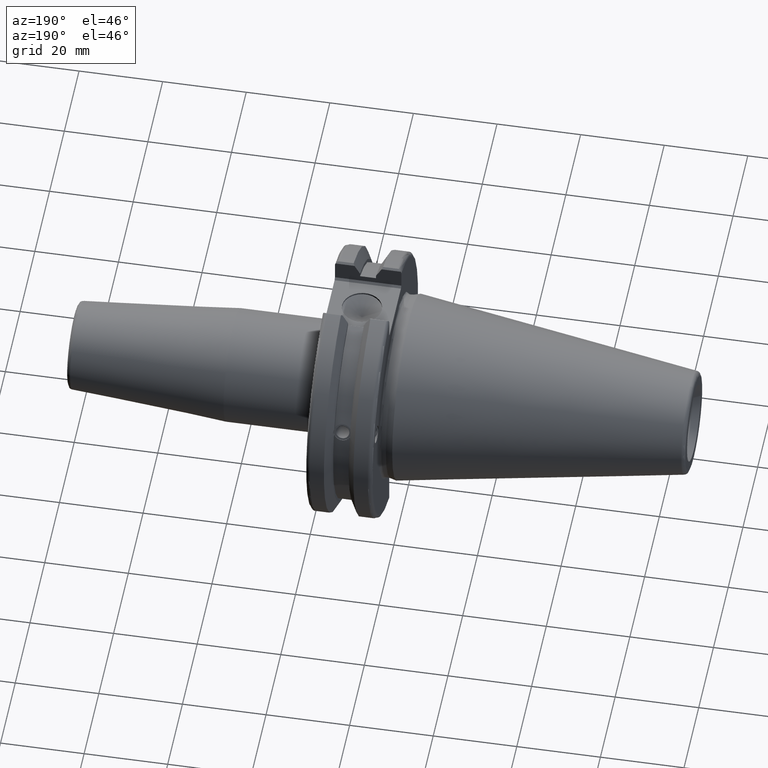
[diagram: clean part render]
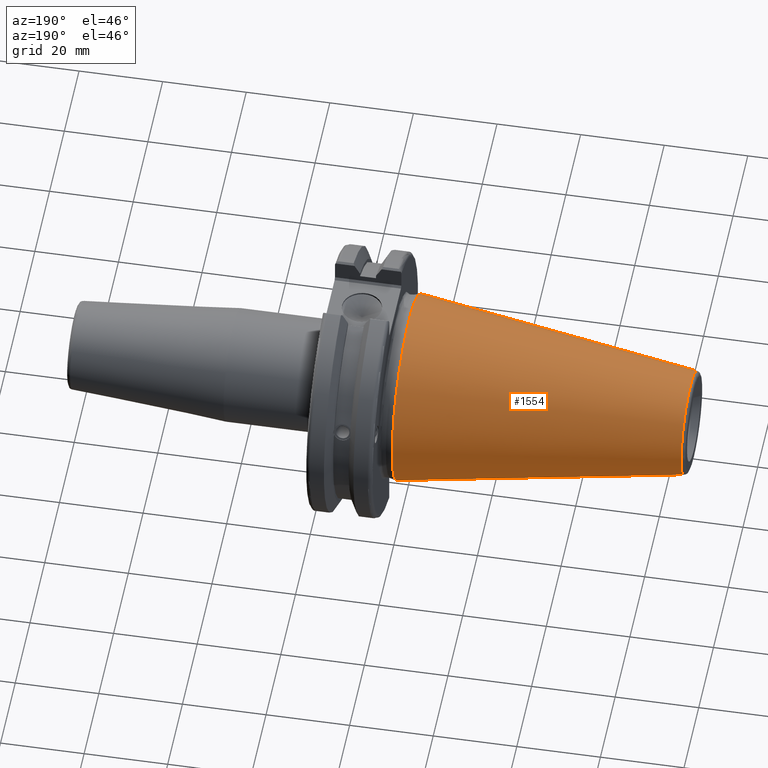
[diagram: same view with one face highlighted and labeled with its STEP entity id]
A machine part, auxiliary view. The second image highlights one B-rep face of the part: STEP entity #1554.
In plain terms, the highlighted conical surface has half-angle 8.297 deg.
Its self-contained STEP definition (entity closure, byte-faithful):
#86=CONICAL_SURFACE('',#1747,17.2484375,0.144812498238939);
#166=LINE('',#2954,#260);
#260=VECTOR('',#2150,17.2484375);
#421=FACE_OUTER_BOUND('',#523,.T.);
#523=EDGE_LOOP('',(#1354,#1355,#1356,#1357,#1358));
#613=CIRCLE('',#1741,12.3966635780937);
#614=CIRCLE('',#1742,12.3966635780937);
#618=CIRCLE('',#1748,22.225);
#769=VERTEX_POINT('',#2941);
#770=VERTEX_POINT('',#2942);
#773=VERTEX_POINT('',#2952);
#979=EDGE_CURVE('',#769,#770,#613,.T.);
#980=EDGE_CURVE('',#770,#769,#614,.T.);
#984=EDGE_CURVE('',#773,#773,#618,.T.);
#985=EDGE_CURVE('',#773,#770,#166,.T.);
#1354=ORIENTED_EDGE('',*,*,#984,.F.);
#1355=ORIENTED_EDGE('',*,*,#985,.T.);
#1356=ORIENTED_EDGE('',*,*,#979,.F.);
#1357=ORIENTED_EDGE('',*,*,#980,.F.);
#1358=ORIENTED_EDGE('',*,*,#985,.F.);
#1554=ADVANCED_FACE('',(#421),#86,.T.);
#1741=AXIS2_PLACEMENT_3D('',#2943,#2134,#2135);
#1742=AXIS2_PLACEMENT_3D('',#2944,#2136,#2137);
#1747=AXIS2_PLACEMENT_3D('',#2951,#2146,#2147);
#1748=AXIS2_PLACEMENT_3D('',#2953,#2148,#2149);
#2134=DIRECTION('center_axis',(-1.,0.,0.));
#2135=DIRECTION('ref_axis',(0.,-1.,3.06161699786838E-17));
#2136=DIRECTION('center_axis',(-1.,0.,0.));
#2137=DIRECTION('ref_axis',(0.,-1.,3.06161699786838E-17));
#2146=DIRECTION('center_axis',(1.,0.,0.));
#2147=DIRECTION('ref_axis',(0.,1.,0.));
#2148=DIRECTION('center_axis',(1.,0.,0.));
#2149=DIRECTION('ref_axis',(0.,0.,-1.));
#2150=DIRECTION('',(-0.989532981063282,0.144306893071729,1.76724974695192E-17));
#2941=CARTESIAN_POINT('',(-67.3943068930717,-1.5181534371019E-15,12.3966635780937));
#2942=CARTESIAN_POINT('',(-67.3943068930718,-12.3966635780937,-1.5181534371019E-15));
#2943=CARTESIAN_POINT('Origin',(-67.3943068930717,0.,-1.89769179637738E-15));
#2944=CARTESIAN_POINT('Origin',(-67.3943068930717,0.,-1.89769179637738E-15));
#2951=CARTESIAN_POINT('Origin',(-34.125,0.,0.));
#2952=CARTESIAN_POINT('',(0.,-22.225,-2.72177751110499E-15));
#2953=CARTESIAN_POINT('Origin',(0.,0.,0.));
#2954=CARTESIAN_POINT('',(-34.125,-17.2484375,-2.11232437746682E-15));